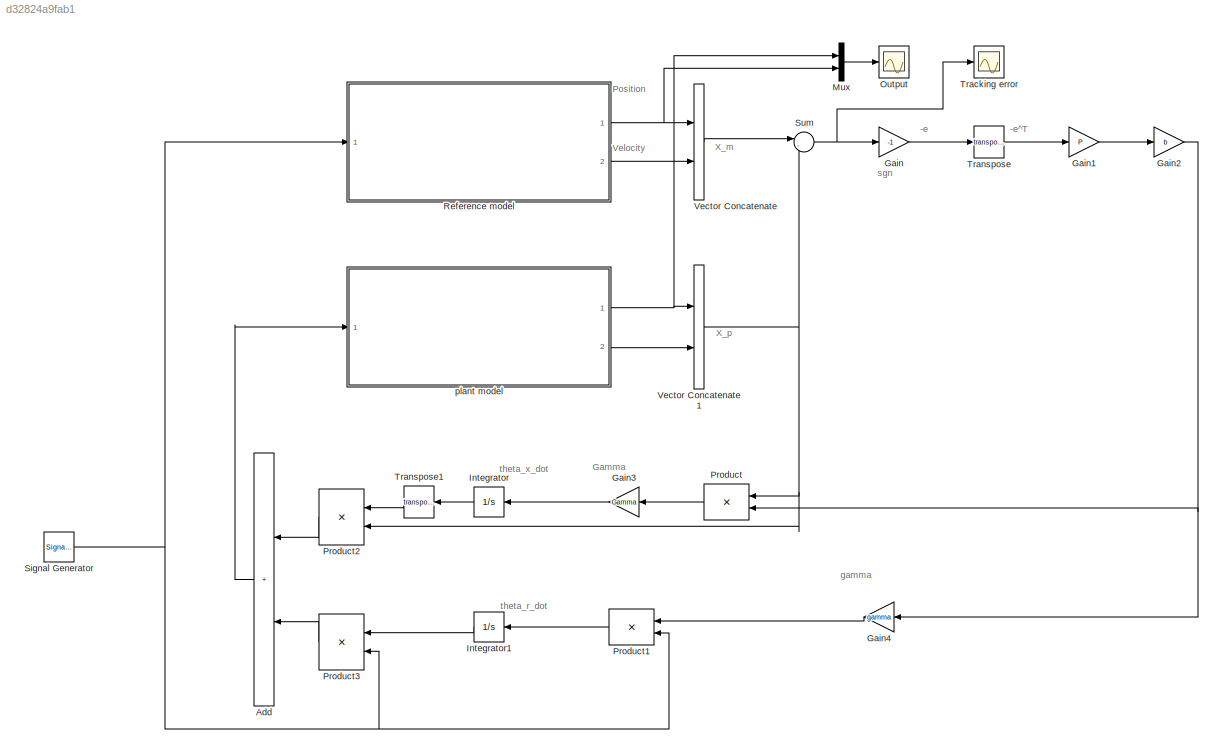
MODEL slx_d32824a9fab1
KIND model
CONFIG AbsTol = auto
CONFIG EnableMultiTasking = off
CONFIG FixedStep = auto
CONFIG MaxStep = auto
CONFIG MinStep = auto
CONFIG RelTol = 1e-3
CONFIG SampleTimeConstraint = Unconstrained
CONFIG SolverName = VariableStepAuto
CONFIG StartTime = 0.0
CONFIG StopTime = 300
BLOCK [Sum] Add
  IconShape = rectangular
  NameLocation = top
  Ports = [2, 1]
BLOCK [Gain] Gain
  Gain = -1
BLOCK [Gain] Gain1
  Gain = P
  Multiplication = Matrix(u*K)
BLOCK [Gain] Gain2
  Gain = b
  Multiplication = Matrix(u*K)
BLOCK [Gain] Gain3
  Gain = Gamma
  Multiplication = Matrix(K*u)
  NameLocation = top
BLOCK [Gain] Gain4
  Gain = gamma
  NameLocation = top
BLOCK [Integrator] Integrator
  NameLocation = top
  Ports = [1, 1]
BLOCK [Integrator] Integrator1
  NameLocation = top
  Ports = [1, 1]
BLOCK [Mux] Mux
  DisplayOption = bar
  Inputs = 2
  Ports = [2, 1]
BLOCK [Scope] Output
  Floating = off
  NumInputPorts = 1
  Ports = [1]
  ScopeSpecificationString = Simulink.scopes.TimeScopeBlockCfg('CurrentConfiguration', extmgr.ConfigurationSet(extmgr.Configuration('Core','General UI',true,'FigureColor',[1 1 1]),extmgr.Configuration('Core','Source UI',true),extmgr.Configuration('Sources','WiredSimulink',true),extmgr.Configuration('Visuals','Time Domain',true,'SerializedDisplays',{struct('MinYLimReal','-2.19228','MaxYLimReal','1.5262','YLabelReal','','MinYLi...<+1674ch>
BLOCK [Product] Product
  Multiplication = Matrix(*)
  NameLocation = top
  Ports = [2, 1]
BLOCK [Product] Product1
  Multiplication = Matrix(*)
  NameLocation = top
  Ports = [2, 1]
BLOCK [Product] Product2
  Multiplication = Matrix(*)
  NameLocation = top
  Ports = [2, 1]
BLOCK [Product] Product3
  Multiplication = Matrix(*)
  NameLocation = top
  Ports = [2, 1]
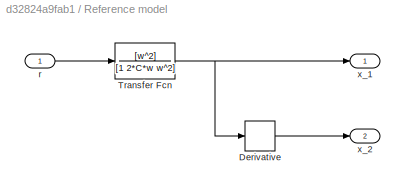
BLOCK [SubSystem] Reference  model
  Ports = [1, 2]
  RequestExecContextInheritance = off
BLOCK [Derivative] Reference  model/Derivative
BLOCK [TransferFcn] Reference  model/Transfer Fcn
  Denominator = [1 2*C*w w^2]
  Numerator = [w^2]
BLOCK [Inport] Reference  model/r
BLOCK [Outport] Reference  model/x_1
BLOCK [Outport] Reference  model/x_2
  Port = 2
BLOCK [SignalGenerator] Signal Generator
  Frequency = 0.05
  Ports = [0, 1]
  WaveForm = square
BLOCK [Sum] Sum
  Inputs = |-+
  Ports = [2, 1]
BLOCK [Scope] Tracking error
  Floating = off
  NumInputPorts = 1
  Ports = [1]
  ScopeSpecificationString = Simulink.scopes.TimeScopeBlockCfg('CurrentConfiguration', extmgr.ConfigurationSet(extmgr.Configuration('Core','General UI',true,'FigureColor',[1 1 1]),extmgr.Configuration('Core','Source UI',true),extmgr.Configuration('Sources','WiredSimulink',true,'DataLoggingVariableName','ScopeData1'),extmgr.Configuration('Visuals','Time Domain',true,'SerializedDisplays',{struct('MinYLimReal','-2.93391','MaxYLi...<+1735ch>
BLOCK [Math] Transpose
  Operator = transpose
  Ports = [1, 1]
BLOCK [Math] Transpose1
  NameLocation = top
  Operator = transpose
  Ports = [1, 1]
BLOCK [Concatenate] Vector Concatenate
  Mode = Multidimensional array
  Ports = [2, 1]
BLOCK [Concatenate] Vector Concatenate1
  Mode = Multidimensional array
  Ports = [2, 1]
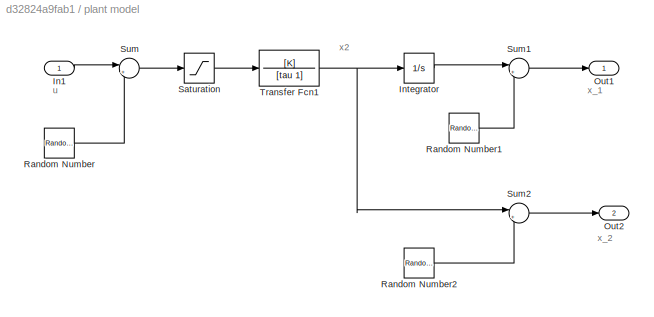
BLOCK [SubSystem] plant model
  Ports = [1, 2]
  RequestExecContextInheritance = off
BLOCK [Inport] plant model/In1
BLOCK [Integrator] plant model/Integrator
  Ports = [1, 1]
BLOCK [Outport] plant model/Out1
BLOCK [Outport] plant model/Out2
  Port = 2
BLOCK [RandomNumber] plant model/Random Number
  SampleTime = 0.1
  Variance = variance
BLOCK [RandomNumber] plant model/Random Number1
  SampleTime = 0.1
  Variance = variance
BLOCK [RandomNumber] plant model/Random Number2
  SampleTime = 0.1
  Variance = variance
BLOCK [Saturate] plant model/Saturation
  LowerLimit = -5
  UpperLimit = 5
BLOCK [Sum] plant model/Sum
  Inputs = |++
  Ports = [2, 1]
BLOCK [Sum] plant model/Sum1
  Inputs = |++
  Ports = [2, 1]
BLOCK [Sum] plant model/Sum2
  Inputs = |++
  Ports = [2, 1]
BLOCK [TransferFcn] plant model/Transfer Fcn1
  Denominator = [tau 1]
  Numerator = [K]
ANNOTATION (root): -e
ANNOTATION (root): -e^T
ANNOTATION (root): Gamma
ANNOTATION (root): Position
ANNOTATION (root): Velocity
ANNOTATION (root): X_m
ANNOTATION (root): X_p
ANNOTATION (root): gamma
ANNOTATION (root): sgn
ANNOTATION (root): theta_r_dot
ANNOTATION (root): theta_x_dot
ANNOTATION plant model: u
ANNOTATION plant model: x2
ANNOTATION plant model: x_1
ANNOTATION plant model: x_2
LINE Add:1 -> plant model:1
LINE Gain1:1 -> Gain2:1
NET Gain2:1 -> Gain4:1, Product:2
LINE Gain3:1 -> Integrator:1
LINE Gain4:1 -> Product1:1
LINE Gain:1 -> Transpose:1
LINE Integrator1:1 -> Product3:1
LINE Integrator:1 -> Transpose1:1
LINE Mux:1 -> Output:1
LINE Product1:1 -> Integrator1:1
LINE Product2:1 -> Add:1
LINE Product3:1 -> Add:2
LINE Product:1 -> Gain3:1
LINE Reference  model/Derivative:1 -> Reference  model/x_2:1
NET Reference  model/Transfer Fcn:1 -> Reference  model/Derivative:1, Reference  model/x_1:1
LINE Reference  model/r:1 -> Reference  model/Transfer Fcn:1
NET Reference  model:1 -> Mux:2, Vector Concatenate:1
LINE Reference  model:2 -> Vector Concatenate:2
NET Signal Generator:1 -> Product1:2, Product3:2, Reference  model:1
NET Sum:1 -> Gain:1, Tracking error:1
LINE Transpose1:1 -> Product2:1
LINE Transpose:1 -> Gain1:1
NET Vector Concatenate1:1 -> Product2:2, Product:1, Sum:2
LINE Vector Concatenate:1 -> Sum:1
LINE plant model/In1:1 -> plant model/Sum:1
LINE plant model/Integrator:1 -> plant model/Sum1:1
LINE plant model/Random Number1:1 -> plant model/Sum1:2
LINE plant model/Random Number2:1 -> plant model/Sum2:2
LINE plant model/Random Number:1 -> plant model/Sum:2
LINE plant model/Saturation:1 -> plant model/Transfer Fcn1:1
LINE plant model/Sum1:1 -> plant model/Out1:1
LINE plant model/Sum2:1 -> plant model/Out2:1
LINE plant model/Sum:1 -> plant model/Saturation:1
NET plant model/Transfer Fcn1:1 -> plant model/Integrator:1, plant model/Sum2:1
NET plant model:1 -> Mux:1, Vector Concatenate1:1
LINE plant model:2 -> Vector Concatenate1:2
note: NET lines group one-source signal fan-out (src -> all destinations, sorted); 1:1 wires keep LINE
